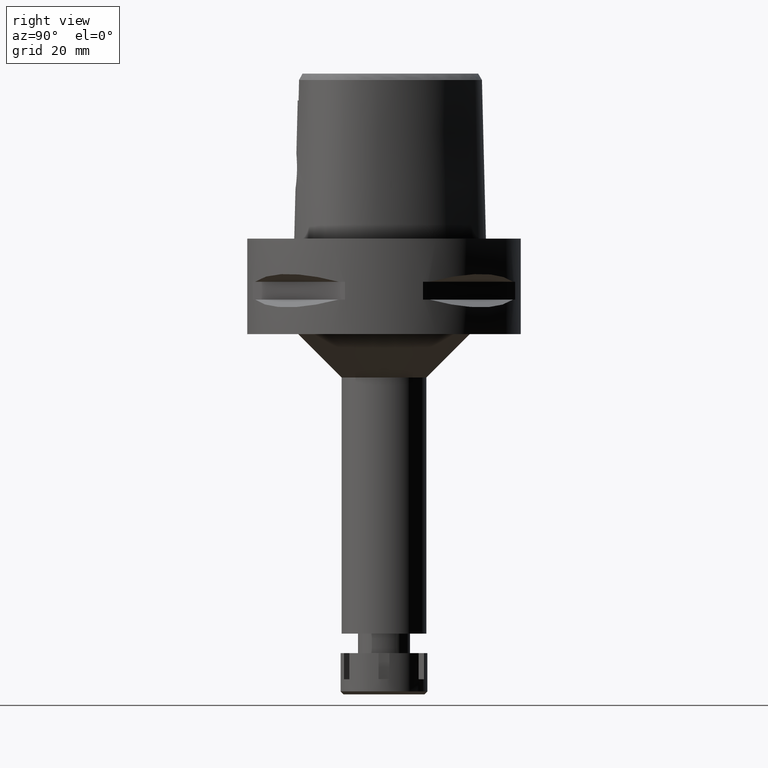
[diagram: clean part render]
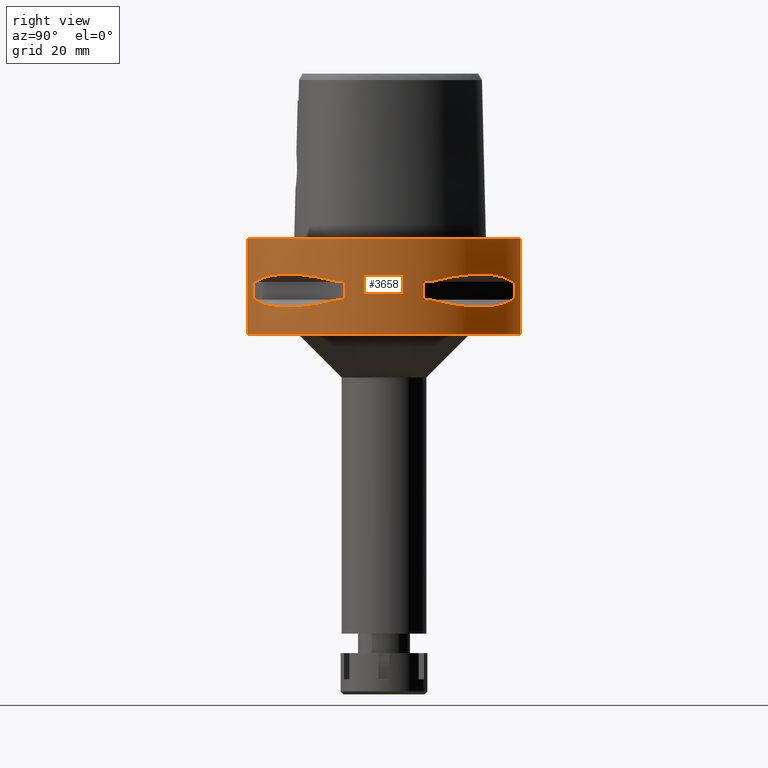
[diagram: same view with one face highlighted and labeled with its STEP entity id]
A machine part, right view. The second image highlights one B-rep face of the part: STEP entity #3658.
In plain terms, the highlighted cylindrical surface (partial cylindrical patch) has radius 31.5 mm, axis along (0, 0, -1).
Its self-contained STEP definition (entity closure, byte-faithful):
#1 = CARTESIAN_POINT ( 'NONE',  ( 25.37272068398773683, -18.81462633032057852, -8.309724968596480466 ) ) ;
#8 = CARTESIAN_POINT ( 'NONE',  ( 0.0000000000000000000, 1.285879139105000048E-14, 5.000000000000000000 ) ) ;
#24 = EDGE_CURVE ( 'NONE', #183, #1331, #2792, .T. ) ;
#38 = ORIENTED_EDGE ( 'NONE', *, *, #1166, .F. ) ;
#52 = CARTESIAN_POINT ( 'NONE',  ( 12.70092055730914815, -28.92474506844677151, -9.353547358226721897 ) ) ;
#64 = CARTESIAN_POINT ( 'NONE',  ( 8.981198972017999438, 30.19251670572000279, -9.950000000000001066 ) ) ;
#145 = CARTESIAN_POINT ( 'NONE',  ( 27.11872488589154528, 16.03138450078616728, -15.26880420107737990 ) ) ;
#183 = VERTEX_POINT ( 'NONE', #5157 ) ;
#230 = ORIENTED_EDGE ( 'NONE', *, *, #3737, .T. ) ;
#231 = EDGE_CURVE ( 'NONE', #4174, #5011, #2786, .T. ) ;
#325 = CIRCLE ( 'NONE', #3563, 31.50000000000000000 ) ;
#372 = CARTESIAN_POINT ( 'NONE',  ( 16.86571563436751475, -26.60451452154716989, -15.39949295786035854 ) ) ;
#386 = DIRECTION ( 'NONE',  ( 0.0000000000000000000, 0.0000000000000000000, 1.000000000000000000 ) ) ;
#408 = ORIENTED_EDGE ( 'NONE', *, *, #3089, .T. ) ;
#434 = DIRECTION ( 'NONE',  ( 0.9433937698468619626, -0.3316748332540863653, 0.0000000000000000000 ) ) ;
#470 = AXIS2_PLACEMENT_3D ( 'NONE', #3833, #5562, #1691 ) ;
#498 = VERTEX_POINT ( 'NONE', #2764 ) ;
#509 = AXIS2_PLACEMENT_3D ( 'NONE', #1659, #3461, #5188 ) ;
#529 = LINE ( 'NONE', #5234, #1155 ) ;
#537 = CARTESIAN_POINT ( 'NONE',  ( 0.0000000000000000000, 1.285879139105000048E-14, 0.0000000000000000000 ) ) ;
#570 = DIRECTION ( 'NONE',  ( 0.0000000000000000000, 0.0000000000000000000, 1.000000000000000000 ) ) ;
#573 = CARTESIAN_POINT ( 'NONE',  ( 30.19251670572000279, -8.981198972017999438, -14.05000000000000071 ) ) ;
#654 = LINE ( 'NONE', #573, #3646 ) ;
#680 = CARTESIAN_POINT ( 'NONE',  ( 30.19251670572000279, -8.981198972019999616, -14.05000000000000071 ) ) ;
#682 = EDGE_CURVE ( 'NONE', #3275, #3050, #3970, .T. ) ;
#732 = CARTESIAN_POINT ( 'NONE',  ( 18.81462633032052167, 25.37272068398780078, -8.309724968596480466 ) ) ;
#762 = CARTESIAN_POINT ( 'NONE',  ( 10.44775724750000023, 29.71690375017999841, -9.949999999998999201 ) ) ;
#776 = CARTESIAN_POINT ( 'NONE',  ( 30.19251670572000279, 8.981198972017999438, -9.950000000000001066 ) ) ;
#786 = AXIS2_PLACEMENT_3D ( 'NONE', #3085, #2203, #1387 ) ;
#789 = CARTESIAN_POINT ( 'NONE',  ( 14.84430321578704337, 27.88210502983996619, -8.906184731967030643 ) ) ;
#915 = CARTESIAN_POINT ( 'NONE',  ( 0.0000000000000000000, -31.50000000000000000, -22.00000000000000000 ) ) ;
#919 = EDGE_CURVE ( 'NONE', #1768, #1256, #4695, .T. ) ;
#926 = EDGE_CURVE ( 'NONE', #1774, #1025, #1981, .T. ) ;
#931 = ORIENTED_EDGE ( 'NONE', *, *, #919, .T. ) ;
#990 = CARTESIAN_POINT ( 'NONE',  ( 21.46242677080035932, 23.08532645886616308, -15.83938991065496715 ) ) ;
#1019 = CARTESIAN_POINT ( 'NONE',  ( 28.62019653468597724, 13.25636937904471147, -14.74888225541528186 ) ) ;
#1025 = VERTEX_POINT ( 'NONE', #762 ) ;
#1057 = DIRECTION ( 'NONE',  ( 0.0000000000000000000, 0.0000000000000000000, -1.000000000000000000 ) ) ;
#1101 = CARTESIAN_POINT ( 'NONE',  ( 26.58330558444425762, 16.89910283486581832, -15.40446471307235754 ) ) ;
#1124 = CARTESIAN_POINT ( 'NONE',  ( 26.54368690921627305, -16.96123479564985459, -15.41365572341332602 ) ) ;
#1137 = CARTESIAN_POINT ( 'NONE',  ( 0.0000000000000000000, 1.285879139105000048E-14, -9.950000000000001066 ) ) ;
#1154 = CARTESIAN_POINT ( 'NONE',  ( 26.42800887047654967, -17.14106442934675911, -15.43984550238513620 ) ) ;
#1155 = VECTOR ( 'NONE', #5175, 1000.000000000000000 ) ;
#1166 = EDGE_CURVE ( 'NONE', #498, #1256, #2433, .T. ) ;
#1192 = ORIENTED_EDGE ( 'NONE', *, *, #1745, .F. ) ;
#1198 = DIRECTION ( 'NONE',  ( 0.0000000000000000000, -1.000000000000000000, 0.0000000000000000000 ) ) ;
#1213 = CARTESIAN_POINT ( 'NONE',  ( 17.76952662673489769, 26.01217882833579154, -15.52665221626253356 ) ) ;
#1221 = DIRECTION ( 'NONE',  ( 0.0000000000000000000, 0.0000000000000000000, -1.000000000000000000 ) ) ;
#1228 = ORIENTED_EDGE ( 'NONE', *, *, #24, .T. ) ;
#1238 = CARTESIAN_POINT ( 'NONE',  ( 24.23018836746479110, -20.18579225685548195, -15.78559396979238194 ) ) ;
#1256 = VERTEX_POINT ( 'NONE', #2550 ) ;
#1301 = EDGE_CURVE ( 'NONE', #498, #1774, #4151, .T. ) ;
#1306 = ORIENTED_EDGE ( 'NONE', *, *, #2334, .F. ) ;
#1310 = EDGE_CURVE ( 'NONE', #1025, #1351, #5322, .T. ) ;
#1331 = VERTEX_POINT ( 'NONE', #3466 ) ;
#1332 = CARTESIAN_POINT ( 'NONE',  ( 0.0000000000000000000, 1.285879139105000048E-14, -14.05000000000000071 ) ) ;
#1351 = VERTEX_POINT ( 'NONE', #64 ) ;
#1355 = FACE_OUTER_BOUND ( 'NONE', #4843, .T. ) ;
#1387 = DIRECTION ( 'NONE',  ( 0.3316748332540863653, -0.9433937698468619626, 0.0000000000000000000 ) ) ;
#1409 = CARTESIAN_POINT ( 'NONE',  ( 20.18579225689579104, 24.23018836742823723, -15.78559396979392560 ) ) ;
#1435 = EDGE_LOOP ( 'NONE', ( #3074, #5167, #2777, #1192, #931, #38, #5448, #2151 ) ) ;
#1447 = CARTESIAN_POINT ( 'NONE',  ( 27.88214534470568395, 14.84422749199026192, -8.906206096497943037 ) ) ;
#1521 = CARTESIAN_POINT ( 'NONE',  ( 27.64634172018161706, 15.11986997310341962, -15.11207862403678170 ) ) ;
#1577 = CARTESIAN_POINT ( 'NONE',  ( 17.05047092244498685, 26.48642424310287780, -15.42670883407686411 ) ) ;
#1603 = CARTESIAN_POINT ( 'NONE',  ( 18.59229662067690114, 25.43927894889767316, -15.62866126334676942 ) ) ;
#1632 = CARTESIAN_POINT ( 'NONE',  ( 16.80193241490779599, -26.64486562695696037, -15.38992683735752642 ) ) ;
#1638 = VERTEX_POINT ( 'NONE', #680 ) ;
#1653 = CARTESIAN_POINT ( 'NONE',  ( 23.90617837147170377, -20.64154884328077699, -8.160613588465007950 ) ) ;
#1659 = CARTESIAN_POINT ( 'NONE',  ( 0.0000000000000000000, 1.285879139105000048E-14, -14.05000000000000071 ) ) ;
#1676 = EDGE_CURVE ( 'NONE', #1638, #1331, #654, .T. ) ;
#1691 = DIRECTION ( 'NONE',  ( 0.9584925938322735872, 0.2851174276831918153, 0.0000000000000000000 ) ) ;
#1722 = DIRECTION ( 'NONE',  ( 0.3316748332540863653, 0.9433937698468619626, 0.0000000000000000000 ) ) ;
#1745 = EDGE_CURVE ( 'NONE', #1768, #4638, #3520, .T. ) ;
#1768 = VERTEX_POINT ( 'NONE', #5502 ) ;
#1769 = CARTESIAN_POINT ( 'NONE',  ( 0.0000000000000000000, 1.285879139105000048E-14, -9.950000000000001066 ) ) ;
#1774 = VERTEX_POINT ( 'NONE', #1995 ) ;
#1786 = EDGE_CURVE ( 'NONE', #1919, #4738, #3590, .T. ) ;
#1828 = CARTESIAN_POINT ( 'NONE',  ( 26.84474411198702981, 16.48208282229089505, -15.34094883778014129 ) ) ;
#1853 = CARTESIAN_POINT ( 'NONE',  ( 26.60451452154748253, 16.86571563436660526, -15.39949295786011874 ) ) ;
#1863 = CARTESIAN_POINT ( 'NONE',  ( 0.0000000000000000000, 1.285879139105000048E-14, -14.05000000000000071 ) ) ;
#1919 = VERTEX_POINT ( 'NONE', #3231 ) ;
#1981 = B_SPLINE_CURVE_WITH_KNOTS ( 'NONE', 3,
 ( #2725, #3589, #1447, #3322, #4528, #1991, #732, #789, #3237, #2414 ),
 .UNSPECIFIED., .F., .F.,
 ( 4, 2, 2, 2, 4 ),
 ( 0.0000000000000000000, 0.2500000000000000000, 0.5000000000000000000, 0.7500000000000000000, 1.000000000000000000 ),
 .UNSPECIFIED. ) ;
#1991 = CARTESIAN_POINT ( 'NONE',  ( 20.64154884328073081, 23.90617837147177482, -8.160613588465007950 ) ) ;
#1995 = CARTESIAN_POINT ( 'NONE',  ( 29.71690375017999841, 10.44775724750000023, -9.949999999998999201 ) ) ;
#2015 = ORIENTED_EDGE ( 'NONE', *, *, #4640, .F. ) ;
#2020 = EDGE_CURVE ( 'NONE', #3050, #3535, #2325, .T. ) ;
#2030 = AXIS2_PLACEMENT_3D ( 'NONE', #8, #4735, #3495 ) ;
#2083 = CARTESIAN_POINT ( 'NONE',  ( 15.11986997312254033, -27.64634172017490954, -15.11207862404184787 ) ) ;
#2151 = ORIENTED_EDGE ( 'NONE', *, *, #926, .T. ) ;
#2163 = CARTESIAN_POINT ( 'NONE',  ( 18.81455742163210587, -25.37277178168278624, -8.309746333127382201 ) ) ;
#2176 = AXIS2_PLACEMENT_3D ( 'NONE', #1137, #2865, #1722 ) ;
#2190 = CARTESIAN_POINT ( 'NONE',  ( 10.44775724750000023, -29.71690375017999841, -9.949999999998999201 ) ) ;
#2201 = ORIENTED_EDGE ( 'NONE', *, *, #682, .T. ) ;
#2203 = DIRECTION ( 'NONE',  ( 0.0000000000000000000, 0.0000000000000000000, -1.000000000000000000 ) ) ;
#2250 = DIRECTION ( 'NONE',  ( 0.0000000000000000000, 0.0000000000000000000, -1.000000000000000000 ) ) ;
#2257 = AXIS2_PLACEMENT_3D ( 'NONE', #1863, #5423, #3146 ) ;
#2325 = LINE ( 'NONE', #4039, #4642 ) ;
#2334 = EDGE_CURVE ( 'NONE', #3275, #5376, #2972, .T. ) ;
#2368 = DIRECTION ( 'NONE',  ( 0.0000000000000000000, 0.0000000000000000000, 1.000000000000000000 ) ) ;
#2390 = CIRCLE ( 'NONE', #786, 31.50000000000000711 ) ;
#2395 = CARTESIAN_POINT ( 'NONE',  ( 23.89673728051777957, 20.65093790438612587, -15.83935804901405042 ) ) ;
#2414 = CARTESIAN_POINT ( 'NONE',  ( 10.44775724750000023, 29.71690375017999841, -9.949999999998999201 ) ) ;
#2416 = VECTOR ( 'NONE', #570, 1000.000000000000000 ) ;
#2430 = ORIENTED_EDGE ( 'NONE', *, *, #1676, .F. ) ;
#2433 = LINE ( 'NONE', #776, #2990 ) ;
#2450 = CARTESIAN_POINT ( 'NONE',  ( 27.86285265927817889, -14.89252659053665795, -15.10765629750851602 ) ) ;
#2460 = ORIENTED_EDGE ( 'NONE', *, *, #231, .T. ) ;
#2474 = CARTESIAN_POINT ( 'NONE',  ( 8.981198972019999616, 30.19251670572000279, -14.05000000000000071 ) ) ;
#2478 = CARTESIAN_POINT ( 'NONE',  ( 23.08532645888704238, -21.46242677077732353, -15.83938991065408963 ) ) ;
#2511 = CARTESIAN_POINT ( 'NONE',  ( 11.58970337496347902, -29.31542262584038028, -14.35229357167449216 ) ) ;
#2512 = AXIS2_PLACEMENT_3D ( 'NONE', #1769, #3491, #5129 ) ;
#2520 = AXIS2_PLACEMENT_3D ( 'NONE', #5563, #3084, #434 ) ;
#2527 = CARTESIAN_POINT ( 'NONE',  ( 0.0000000000000000000, 1.285879139105000048E-14, -22.00000000000000000 ) ) ;
#2540 = CARTESIAN_POINT ( 'NONE',  ( 0.0000000000000000000, 31.50000000000000000, -22.00000000000000000 ) ) ;
#2550 = CARTESIAN_POINT ( 'NONE',  ( 30.19251670572000279, 8.981198972017999438, -14.05000000000000071 ) ) ;
#2632 = ORIENTED_EDGE ( 'NONE', *, *, #3467, .T. ) ;
#2681 = EDGE_CURVE ( 'NONE', #5011, #183, #4449, .T. ) ;
#2725 = CARTESIAN_POINT ( 'NONE',  ( 29.71690375017999841, 10.44775724750000023, -9.949999999998999201 ) ) ;
#2764 = CARTESIAN_POINT ( 'NONE',  ( 30.19251670572000279, 8.981198972019999616, -9.950000000000001066 ) ) ;
#2777 = ORIENTED_EDGE ( 'NONE', *, *, #3485, .T. ) ;
#2786 = CIRCLE ( 'NONE', #2512, 31.50000000000001776 ) ;
#2792 = CIRCLE ( 'NONE', #2520, 31.50000000000000711 ) ;
#2818 = ORIENTED_EDGE ( 'NONE', *, *, #1786, .F. ) ;
#2826 = CARTESIAN_POINT ( 'NONE',  ( 29.31542262584548553, 11.58970337494890224, -14.35229357167063213 ) ) ;
#2865 = DIRECTION ( 'NONE',  ( 0.0000000000000000000, 0.0000000000000000000, 1.000000000000000000 ) ) ;
#2909 = CARTESIAN_POINT ( 'NONE',  ( 13.25636937907020929, -28.62019653467701730, -14.74888225542203379 ) ) ;
#2936 = CARTESIAN_POINT ( 'NONE',  ( 17.14106442935163699, 26.42800887047211944, -15.43984550238531916 ) ) ;
#2963 = CARTESIAN_POINT ( 'NONE',  ( 14.89252659058207939, 27.86285265926221300, -15.10765629752054195 ) ) ;
#2972 = LINE ( 'NONE', #3051, #4733 ) ;
#2990 = VECTOR ( 'NONE', #1221, 1000.000000000000000 ) ;
#3003 = DIRECTION ( 'NONE',  ( 0.0000000000000000000, 0.0000000000000000000, -1.000000000000000000 ) ) ;
#3031 = AXIS2_PLACEMENT_3D ( 'NONE', #1332, #3003, #3109 ) ;
#3050 = VERTEX_POINT ( 'NONE', #3368 ) ;
#3051 = CARTESIAN_POINT ( 'NONE',  ( 0.0000000000000000000, 31.50000000000000000, 0.0000000000000000000 ) ) ;
#3071 = CARTESIAN_POINT ( 'NONE',  ( 20.64154884328072370, -23.90617837147174285, -8.160627831309671620 ) ) ;
#3074 = ORIENTED_EDGE ( 'NONE', *, *, #1310, .T. ) ;
#3084 = DIRECTION ( 'NONE',  ( 0.0000000000000000000, 0.0000000000000000000, 1.000000000000000000 ) ) ;
#3085 = CARTESIAN_POINT ( 'NONE',  ( 0.0000000000000000000, 1.285879139105000048E-14, -14.05000000000000071 ) ) ;
#3089 = EDGE_CURVE ( 'NONE', #3535, #5376, #325, .T. ) ;
#3109 = DIRECTION ( 'NONE',  ( 0.2851174276831918153, 0.9584925938322735872, 0.0000000000000000000 ) ) ;
#3146 = DIRECTION ( 'NONE',  ( 0.9433937698468619626, 0.3316748332540863653, 0.0000000000000000000 ) ) ;
#3183 = LINE ( 'NONE', #5244, #2416 ) ;
#3231 = CARTESIAN_POINT ( 'NONE',  ( 10.44775724750000023, -29.71690375017999841, -14.05000000000000071 ) ) ;
#3237 = CARTESIAN_POINT ( 'NONE',  ( 12.70097436183467110, 28.92472615205410236, -9.353533115206117188 ) ) ;
#3244 = CARTESIAN_POINT ( 'NONE',  ( 25.32725744468687168, 18.86897208071480136, -15.69588095933130845 ) ) ;
#3266 = CARTESIAN_POINT ( 'NONE',  ( 8.981198972017999438, -30.19251670572000279, -14.05000000000000071 ) ) ;
#3269 = CARTESIAN_POINT ( 'NONE',  ( 29.71690375017999841, -10.44775724750000023, -14.05000000000000071 ) ) ;
#3275 = VERTEX_POINT ( 'NONE', #5060 ) ;
#3296 = CARTESIAN_POINT ( 'NONE',  ( 16.03138450079733346, -27.11872488588761954, -15.26880420108033398 ) ) ;
#3322 = CARTESIAN_POINT ( 'NONE',  ( 25.37277178168286440, 18.81455742163205258, -8.309746333127383977 ) ) ;
#3327 = CARTESIAN_POINT ( 'NONE',  ( 25.43927894892507169, -18.59229662064666755, -15.62866126334561123 ) ) ;
#3336 = ORIENTED_EDGE ( 'NONE', *, *, #2681, .T. ) ;
#3356 = CARTESIAN_POINT ( 'NONE',  ( 18.86897208074864096, -25.32725744465734152, -15.69588095933306704 ) ) ;
#3368 = CARTESIAN_POINT ( 'NONE',  ( 0.0000000000000000000, -31.50000000000000000, 0.0000000000000000000 ) ) ;
#3378 = CARTESIAN_POINT ( 'NONE',  ( 29.71690375017999841, -10.44775724750000023, -9.949999999998999201 ) ) ;
#3381 = CARTESIAN_POINT ( 'NONE',  ( 10.44775724750000023, 29.71690375017999841, -14.05000000000000071 ) ) ;
#3404 = CARTESIAN_POINT ( 'NONE',  ( 14.84422749199042890, -27.88214534470556671, -8.906206096497941260 ) ) ;
#3461 = DIRECTION ( 'NONE',  ( 0.0000000000000000000, 0.0000000000000000000, -1.000000000000000000 ) ) ;
#3466 = CARTESIAN_POINT ( 'NONE',  ( 30.19251670572000279, -8.981198972017999438, -9.950000000000001066 ) ) ;
#3467 = EDGE_CURVE ( 'NONE', #1919, #4240, #2390, .T. ) ;
#3485 = EDGE_CURVE ( 'NONE', #4130, #4638, #4375, .T. ) ;
#3491 = DIRECTION ( 'NONE',  ( 0.0000000000000000000, 0.0000000000000000000, 1.000000000000000000 ) ) ;
#3495 = DIRECTION ( 'NONE',  ( 0.0000000000000000000, -1.000000000000000000, 0.0000000000000000000 ) ) ;
#3520 = B_SPLINE_CURVE_WITH_KNOTS ( 'NONE', 3,
 ( #5383, #2826, #1019, #1521, #145, #1828, #3629, #4850, #1853, #1101, #3244, #2395, #990, #1409, #1603, #1213, #4223, #2936, #1577, #5438, #4138, #2963, #4620, #3381 ),
 .UNSPECIFIED., .F., .F.,
 ( 4, 1, 1, 1, 1, 1, 2, 2, 2, 1, 1, 1, 1, 1, 2, 2, 4 ),
 ( 0.0000000000000000000, 0.1250000000000023870, 0.1875000000000036915, 0.2187500000000045797, 0.2343750000000049960, 0.2421875000000053013, 0.2460937500000055789, 0.2500000000000058842, 0.5000000000000076605, 0.6250000000000083267, 0.6875000000000086597, 0.7187500000000088818, 0.7343750000000086597, 0.7421875000000086597, 0.7460937500000084377, 0.7500000000000083267, 1.000000000000000000 ),
 .UNSPECIFIED. ) ;
#3535 = VERTEX_POINT ( 'NONE', #915 ) ;
#3563 = AXIS2_PLACEMENT_3D ( 'NONE', #2527, #386, #1198 ) ;
#3589 = CARTESIAN_POINT ( 'NONE',  ( 28.92474506844685678, 12.70092055730897762, -9.353547358226721897 ) ) ;
#3590 = B_SPLINE_CURVE_WITH_KNOTS ( 'NONE', 3,
 ( #5017, #2511, #2909, #2083, #3296, #4167, #5103, #1632, #372, #5046, #3356, #4681, #2478, #1238, #3327, #4196, #5528, #1154, #3685, #5076, #1124, #2450, #4649, #3269 ),
 .UNSPECIFIED., .F., .F.,
 ( 4, 1, 1, 1, 1, 1, 2, 2, 2, 1, 1, 1, 1, 1, 2, 2, 4 ),
 ( 0.0000000000000000000, 0.1250000000000063005, 0.1875000000000094369, 0.2187500000000109357, 0.2343750000000116851, 0.2421875000000119627, 0.2460937500000119627, 0.2500000000000119349, 0.5000000000000025535, 0.6249999999999978906, 0.6874999999999955591, 0.7187499999999945599, 0.7343749999999941158, 0.7421874999999936717, 0.7460937499999935607, 0.7499999999999933387, 1.000000000000000000 ),
 .UNSPECIFIED. ) ;
#3629 = CARTESIAN_POINT ( 'NONE',  ( 26.70521063584491017, 16.70616724745910275, -15.37546661817714444 ) ) ;
#3646 = VECTOR ( 'NONE', #2368, 1000.000000000000000 ) ;
#3658 = ADVANCED_FACE ( 'NONE', ( #1355, #3912, #3942 ), #3852, .T. ) ;
#3685 = CARTESIAN_POINT ( 'NONE',  ( 26.48642424310542509, -17.05047092244215889, -15.42670883407675042 ) ) ;
#3737 = EDGE_CURVE ( 'NONE', #1638, #4738, #4190, .T. ) ;
#3833 = CARTESIAN_POINT ( 'NONE',  ( 0.0000000000000000000, 1.285879139105000048E-14, -9.950000000000001066 ) ) ;
#3852 = CYLINDRICAL_SURFACE ( 'NONE', #2030, 31.50000000000000000 ) ;
#3879 = EDGE_CURVE ( 'NONE', #4130, #1351, #3183, .T. ) ;
#3912 = FACE_BOUND ( 'NONE', #4860, .T. ) ;
#3942 = FACE_BOUND ( 'NONE', #1435, .T. ) ;
#3970 = CIRCLE ( 'NONE', #5236, 31.50000000000000000 ) ;
#4039 = CARTESIAN_POINT ( 'NONE',  ( 0.0000000000000000000, -31.50000000000000000, 0.0000000000000000000 ) ) ;
#4130 = VERTEX_POINT ( 'NONE', #2474 ) ;
#4138 = CARTESIAN_POINT ( 'NONE',  ( 16.96123479564913694, 26.54368690921650398, -15.41365572341313239 ) ) ;
#4151 = CIRCLE ( 'NONE', #470, 31.50000000000001776 ) ;
#4167 = CARTESIAN_POINT ( 'NONE',  ( 16.48208282229687427, -26.84474411198493371, -15.34094883778172402 ) ) ;
#4174 = VERTEX_POINT ( 'NONE', #5073 ) ;
#4190 = CIRCLE ( 'NONE', #509, 31.50000000000001776 ) ;
#4196 = CARTESIAN_POINT ( 'NONE',  ( 26.01217882835178585, -17.76952662671725847, -15.52665221626185676 ) ) ;
#4209 = CARTESIAN_POINT ( 'NONE',  ( 29.71690375017999841, -10.44775724750000023, -14.05000000000000071 ) ) ;
#4223 = CARTESIAN_POINT ( 'NONE',  ( 17.35163608580574035, 26.29071741523071282, -15.46976201925525274 ) ) ;
#4240 = VERTEX_POINT ( 'NONE', #3266 ) ;
#4375 = CIRCLE ( 'NONE', #3031, 31.50000000000001776 ) ;
#4449 = B_SPLINE_CURVE_WITH_KNOTS ( 'NONE', 3,
 ( #2190, #52, #3404, #2163, #3071, #1653, #1, #5180, #4727, #3378 ),
 .UNSPECIFIED., .F., .F.,
 ( 4, 2, 2, 2, 4 ),
 ( 0.0000000000000000000, 0.2499999999999998335, 0.4999999999999998890, 0.7499999999999998890, 1.000000000000000000 ),
 .UNSPECIFIED. ) ;
#4528 = CARTESIAN_POINT ( 'NONE',  ( 23.90617837147169666, 20.64154884328081252, -8.160627831309673397 ) ) ;
#4620 = CARTESIAN_POINT ( 'NONE',  ( 12.73197616789159525, 28.91382665368562144, -14.65467361754145514 ) ) ;
#4638 = VERTEX_POINT ( 'NONE', #5204 ) ;
#4640 = EDGE_CURVE ( 'NONE', #4174, #4240, #529, .T. ) ;
#4642 = VECTOR ( 'NONE', #1057, 1000.000000000000000 ) ;
#4649 = CARTESIAN_POINT ( 'NONE',  ( 28.91382665370159089, -12.73197616784618269, -14.65467361752943098 ) ) ;
#4681 = CARTESIAN_POINT ( 'NONE',  ( 20.65093790434436372, -23.89673728056386182, -15.83935804901581079 ) ) ;
#4695 = CIRCLE ( 'NONE', #2257, 31.50000000000000711 ) ;
#4711 = DIRECTION ( 'NONE',  ( 0.0000000000000000000, 0.0000000000000000000, -1.000000000000000000 ) ) ;
#4727 = CARTESIAN_POINT ( 'NONE',  ( 28.92472615205410591, -12.70097436183464978, -9.353533115206117188 ) ) ;
#4733 = VECTOR ( 'NONE', #4711, 1000.000000000000000 ) ;
#4735 = DIRECTION ( 'NONE',  ( 0.0000000000000000000, 0.0000000000000000000, -1.000000000000000000 ) ) ;
#4738 = VERTEX_POINT ( 'NONE', #4209 ) ;
#4803 = CARTESIAN_POINT ( 'NONE',  ( 10.44775724750000023, -29.71690375017999841, -9.949999999998999201 ) ) ;
#4843 = EDGE_LOOP ( 'NONE', ( #2201, #4849, #408, #1306 ) ) ;
#4849 = ORIENTED_EDGE ( 'NONE', *, *, #2020, .T. ) ;
#4850 = CARTESIAN_POINT ( 'NONE',  ( 26.64486562695759275, 16.80193241490600542, -15.38992683735705391 ) ) ;
#4860 = EDGE_LOOP ( 'NONE', ( #1228, #2430, #230, #2818, #2632, #2015, #2460, #3336 ) ) ;
#4956 = DIRECTION ( 'NONE',  ( 0.0000000000000000000, 1.000000000000000000, 0.0000000000000000000 ) ) ;
#5011 = VERTEX_POINT ( 'NONE', #4803 ) ;
#5017 = CARTESIAN_POINT ( 'NONE',  ( 10.44775724750000023, -29.71690375017999841, -14.05000000000000071 ) ) ;
#5046 = CARTESIAN_POINT ( 'NONE',  ( 16.89910283486529252, -26.58330558444471947, -15.40446471307232912 ) ) ;
#5060 = CARTESIAN_POINT ( 'NONE',  ( 0.0000000000000000000, 31.50000000000000000, 0.0000000000000000000 ) ) ;
#5073 = CARTESIAN_POINT ( 'NONE',  ( 8.981198972019999616, -30.19251670572000279, -9.950000000000001066 ) ) ;
#5076 = CARTESIAN_POINT ( 'NONE',  ( 26.52527364208627958, -16.98999780422056816, -15.41788098766324744 ) ) ;
#5103 = CARTESIAN_POINT ( 'NONE',  ( 16.70616724746217940, -26.70521063584381949, -15.37546661817795624 ) ) ;
#5129 = DIRECTION ( 'NONE',  ( 0.2851174276831918153, -0.9584925938322735872, 0.0000000000000000000 ) ) ;
#5157 = CARTESIAN_POINT ( 'NONE',  ( 29.71690375017999841, -10.44775724750000023, -9.949999999998999201 ) ) ;
#5167 = ORIENTED_EDGE ( 'NONE', *, *, #3879, .F. ) ;
#5175 = DIRECTION ( 'NONE',  ( 0.0000000000000000000, 0.0000000000000000000, -1.000000000000000000 ) ) ;
#5180 = CARTESIAN_POINT ( 'NONE',  ( 27.88210502983992711, -14.84430321578705403, -8.906184731967030643 ) ) ;
#5188 = DIRECTION ( 'NONE',  ( 0.9584925938322735872, -0.2851174276831918153, 0.0000000000000000000 ) ) ;
#5204 = CARTESIAN_POINT ( 'NONE',  ( 10.44775724750000023, 29.71690375017999841, -14.05000000000000071 ) ) ;
#5234 = CARTESIAN_POINT ( 'NONE',  ( 8.981198972017999438, -30.19251670572000279, -9.950000000000001066 ) ) ;
#5236 = AXIS2_PLACEMENT_3D ( 'NONE', #537, #2250, #4956 ) ;
#5244 = CARTESIAN_POINT ( 'NONE',  ( 8.981198972017999438, 30.19251670572000279, -14.05000000000000071 ) ) ;
#5322 = CIRCLE ( 'NONE', #2176, 31.50000000000000711 ) ;
#5376 = VERTEX_POINT ( 'NONE', #2540 ) ;
#5383 = CARTESIAN_POINT ( 'NONE',  ( 29.71690375017999841, 10.44775724750000023, -14.05000000000000071 ) ) ;
#5423 = DIRECTION ( 'NONE',  ( 0.0000000000000000000, 0.0000000000000000000, -1.000000000000000000 ) ) ;
#5438 = CARTESIAN_POINT ( 'NONE',  ( 16.98999780422198569, 26.52527364208497573, -15.41788098766329540 ) ) ;
#5448 = ORIENTED_EDGE ( 'NONE', *, *, #1301, .T. ) ;
#5502 = CARTESIAN_POINT ( 'NONE',  ( 29.71690375017999841, 10.44775724750000023, -14.05000000000000071 ) ) ;
#5528 = CARTESIAN_POINT ( 'NONE',  ( 26.29071741523927841, -17.35163608579630079, -15.46976201925489569 ) ) ;
#5562 = DIRECTION ( 'NONE',  ( 0.0000000000000000000, 0.0000000000000000000, 1.000000000000000000 ) ) ;
#5563 = CARTESIAN_POINT ( 'NONE',  ( 0.0000000000000000000, 1.285879139105000048E-14, -9.950000000000001066 ) ) ;